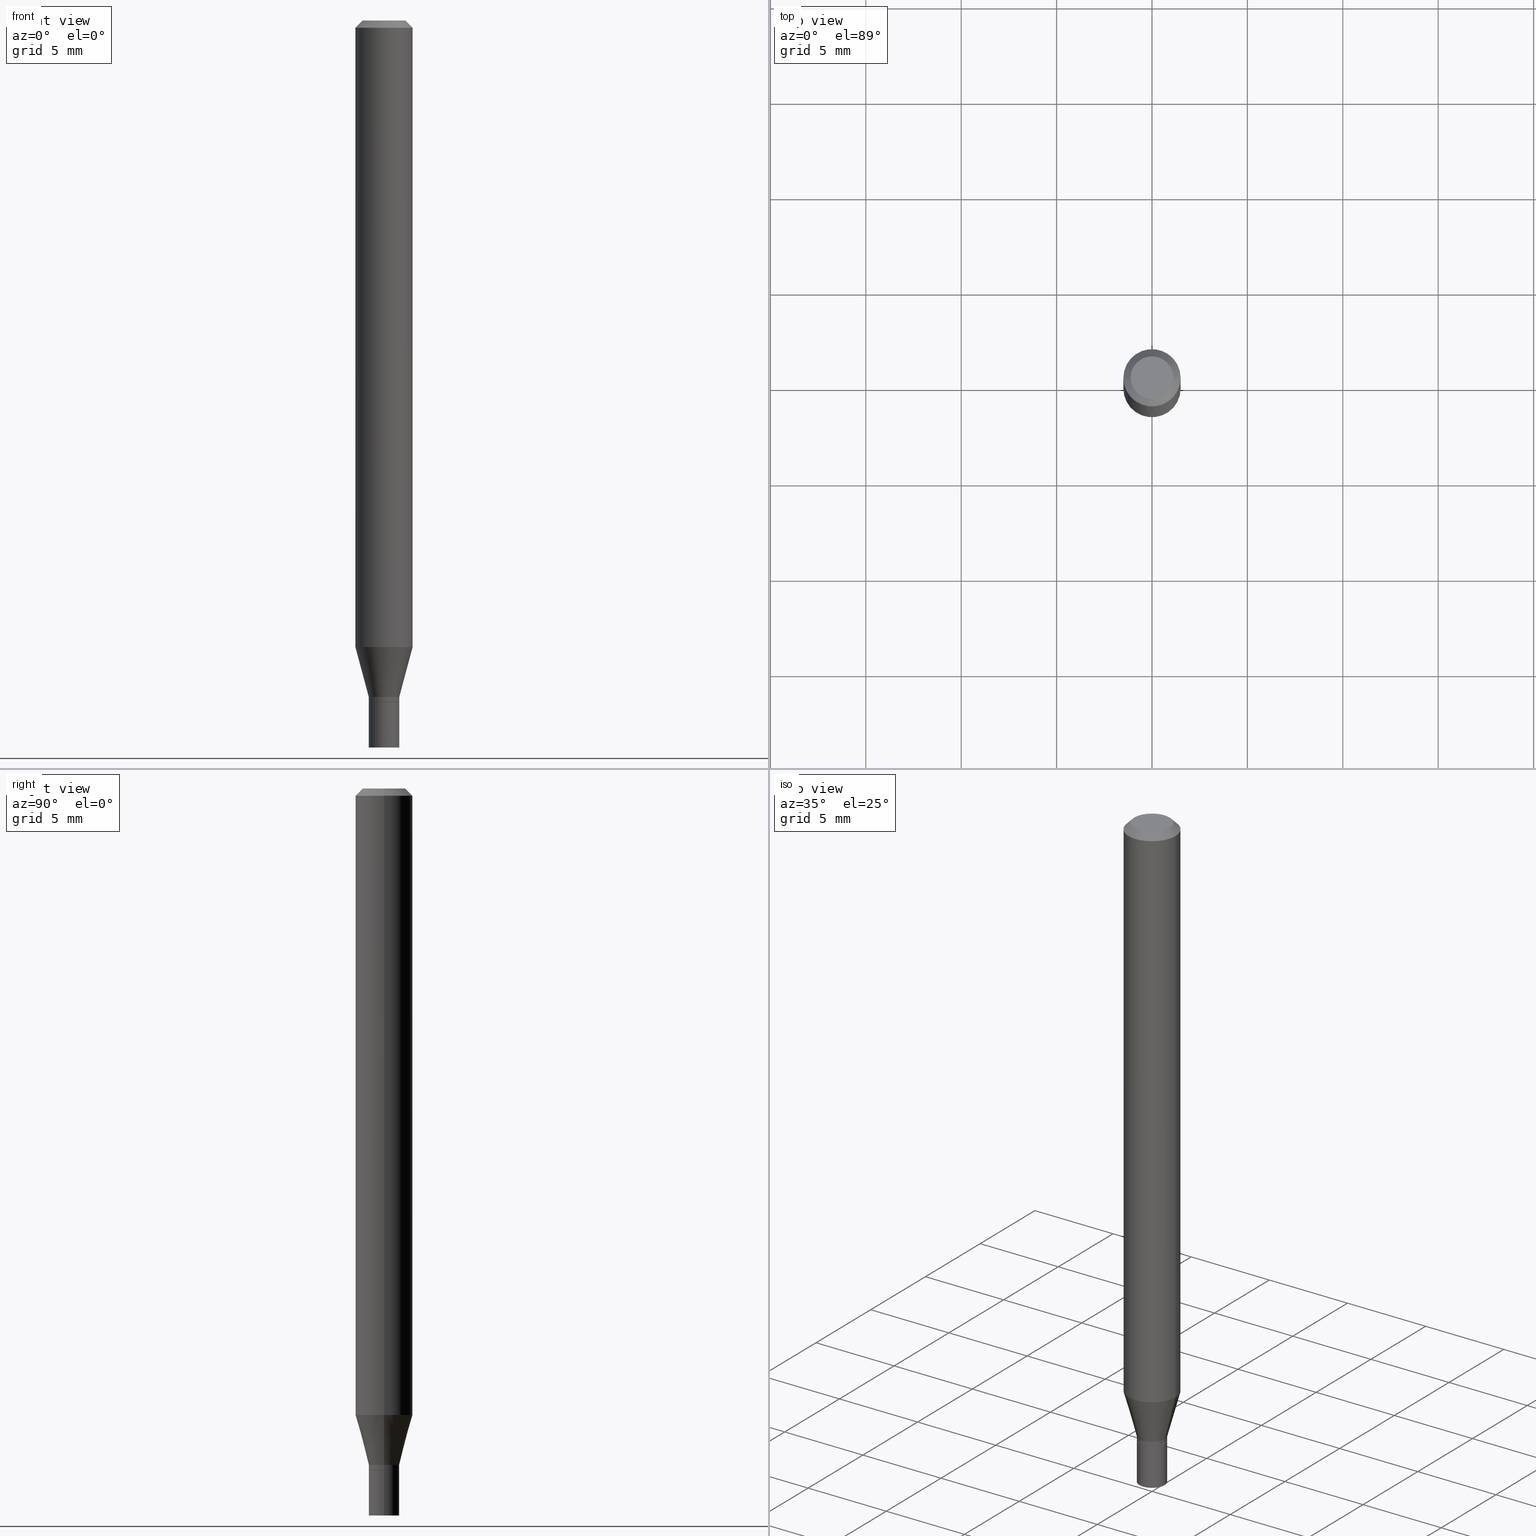
[diagram: canonical four-view strip — front | top / right | iso, engineering-drawing reading convention]
A machine part, canonical four-view strip (front | top / right | iso — engineering-drawing reading convention). The complete STEP part file that produces these views, byte-faithful:
ISO-10303-21;
HEADER;
FILE_DESCRIPTION (( 'STEP AP203' ),
    '1' );
FILE_NAME ('09294.STEP',
    '2024-03-14T18:23:59',
    ( '' ),
    ( '' ),
    'SwSTEP 2.0',
    'SolidWorks 2023',
    '' );
FILE_SCHEMA (( 'CONFIG_CONTROL_DESIGN' ));
ENDSEC;

DATA;
#1 = VERTEX_POINT ( 'NONE', #8 ) ;
#2 = AXIS2_PLACEMENT_3D ( 'NONE', #441, #227, #166 ) ;
#3 = CIRCLE ( 'NONE', #346, 0.03150000000000019451 ) ;
#4 = ORGANIZATION ( 'UNSPECIFIED', 'UNSPECIFIED', '' ) ;
#5 = APPROVAL_DATE_TIME ( #10, #408 ) ;
#6 = DIMENSIONAL_EXPONENTS ( 1.000000000000000000, 0.000000000000000000, 0.000000000000000000, 0.000000000000000000, 0.000000000000000000, 0.000000000000000000, 0.000000000000000000 ) ;
#7 = PRODUCT_DEFINITION_SHAPE ( 'NONE', 'NONE',  #260 ) ;
#8 = CARTESIAN_POINT ( 'NONE',  ( 0.03150000000000000022, -5.457185332611835515E-15, -1.500000000000000222 ) ) ;
#9 = CALENDAR_DATE ( 2024, 14, 3 ) ;
#10 = DATE_AND_TIME ( #110, #264 ) ;
#11 = CARTESIAN_POINT ( 'NONE',  ( 3.437106407093209137E-29, -4.907277021744040592E-15, -1.405499999999999750 ) ) ;
#12 = AXIS2_PLACEMENT_3D ( 'NONE', #41, #22, #94 ) ;
#13 = CARTESIAN_POINT ( 'NONE',  ( 0.000000000000000000, 0.000000000000000000, 0.000000000000000000 ) ) ;
#14 = CONICAL_SURFACE ( 'NONE', #91, 0.03099999999999999978, 0.7853981633980202659 ) ;
#15 = LINE ( 'NONE', #198, #425 ) ;
#16 = APPROVAL ( #256, 'UNSPECIFIED' ) ;
#17 = FACE_OUTER_BOUND ( 'NONE', #431, .T. ) ;
#18 = CARTESIAN_POINT ( 'NONE',  ( 0.03150000000000019451, -5.125494605421738793E-15, -1.405000000000000249 ) ) ;
#19 = CONICAL_SURFACE ( 'NONE', #409, 0.05904999999999999832, 0.7853981633974399523 ) ;
#20 = VECTOR ( 'NONE', #350, 39.37007874015748143 ) ;
#21 = CARTESIAN_POINT ( 'NONE',  ( 3.576687321579069994E-29, -5.368277968210015545E-15, -1.500000000000000222 ) ) ;
#22 = DIRECTION ( 'NONE',  ( -2.445468806185136597E-29, 3.491481338843145583E-15, 1.000000000000000000 ) ) ;
#23 = APPLICATION_PROTOCOL_DEFINITION ( 'international standard', 'config_control_design', 1994, #405 ) ;
#24 = EDGE_CURVE ( 'NONE', #29, #284, #80, .T. ) ;
#25 = EDGE_LOOP ( 'NONE', ( #213, #334, #224, #423 ) ) ;
#26 = CARTESIAN_POINT ( 'NONE',  ( 0.05904999999999999832, -4.647161662000212105E-16, -0.01499999999999999944 ) ) ;
#27 = CARTESIAN_POINT ( 'NONE',  ( 0.000000000000000000, 0.000000000000000000, 0.000000000000000000 ) ) ;
#28 = DIRECTION ( 'NONE',  ( 0.2588190451025214611, 1.565188264969620982E-15, 0.9659258262890679791 ) ) ;
#29 = VERTEX_POINT ( 'NONE', #100 ) ;
#30 = CARTESIAN_POINT ( 'NONE',  ( 3.161213507931992850E-29, -4.513375080936461598E-15, -1.292682000251476726 ) ) ;
#31 = CONICAL_SURFACE ( 'NONE', #302, 0.03099999999999999978, 0.7853981633980202659 ) ;
#32 =( NAMED_UNIT ( * ) SI_UNIT ( $, .STERADIAN. ) SOLID_ANGLE_UNIT ( ) );
#33 = VECTOR ( 'NONE', #64, 39.37007874015748854 ) ;
#34 = EDGE_LOOP ( 'NONE', ( #65, #160, #221, #176 ) ) ;
#35 = DIRECTION ( 'NONE',  ( -2.438088387897960049E-29, 3.491481338843145188E-15, 1.000000000000000000 ) ) ;
#36 = EDGE_CURVE ( 'NONE', #252, #363, #142, .T. ) ;
#37 = CARTESIAN_POINT ( 'NONE',  ( -0.03150000000000000022, 2.238209617644315601E-16, -1.549464553430295327E-30 ) ) ;
#38 = PRODUCT_RELATED_PRODUCT_CATEGORY ( 'detail', '', ( #79 ) ) ;
#39 = AXIS2_PLACEMENT_3D ( 'NONE', #30, #310, #55 ) ;
#40 = APPROVAL_PERSON_ORGANIZATION ( #330, #408, #165 ) ;
#41 = CARTESIAN_POINT ( 'NONE',  ( 3.437106407093209137E-29, -4.907277021744040592E-15, -1.405499999999999750 ) ) ;
#42 = ORIENTED_EDGE ( 'NONE', *, *, #263, .T. ) ;
#43 = CARTESIAN_POINT ( 'NONE',  ( 0.05904999999999999832, -4.925719027053834940E-15, -1.292682000251476726 ) ) ;
#44 = EDGE_LOOP ( 'NONE', ( #354, #157 ) ) ;
#45 = PERSON_AND_ORGANIZATION_ROLE ( 'creator' ) ;
#46 = CARTESIAN_POINT ( 'NONE',  ( -0.05904999999999999832, -1.863298165043215043E-15, -0.01499999999999999944 ) ) ;
#47 = ORIENTED_EDGE ( 'NONE', *, *, #263, .F. ) ;
#48 = CIRCLE ( 'NONE', #170, 0.03099999999999999978 ) ;
#49 = CALENDAR_DATE ( 2024, 14, 3 ) ;
#50 = EDGE_LOOP ( 'NONE', ( #131, #42, #390, #375 ) ) ;
#51 = APPROVAL_DATE_TIME ( #196, #16 ) ;
#52 = EDGE_CURVE ( 'NONE', #358, #418, #206, .T. ) ;
#53 = ADVANCED_FACE ( 'NONE', ( #106 ), #318, .F. ) ;
#54 = DIRECTION ( 'NONE',  ( -2.445468806185136597E-29, 3.491481338843145583E-15, 1.000000000000000000 ) ) ;
#55 = DIRECTION ( 'NONE',  ( 1.000000000000000000, -6.982962677686273021E-15, 0.000000000000000000 ) ) ;
#56 = VECTOR ( 'NONE', #411, 39.37007874015748143 ) ;
#57 = AXIS2_PLACEMENT_3D ( 'NONE', #414, #101, #382 ) ;
#58 = EDGE_CURVE ( 'NONE', #210, #290, #313, .T. ) ;
#59 = CARTESIAN_POINT ( 'NONE',  ( 0.03099999999999999978, -5.123748864752314923E-15, -1.405499999999999750 ) ) ;
#60 = EDGE_CURVE ( 'NONE', #144, #175, #70, .T. ) ;
#61 = DIRECTION ( 'NONE',  ( 0.7071067811865415775, -7.319954787623235535E-15, -0.7071067811865534569 ) ) ;
#62 = CC_DESIGN_PERSON_AND_ORGANIZATION_ASSIGNMENT ( #143, #374, ( #79 ) ) ;
#63 = PLANE ( 'NONE',  #443 ) ;
#64 = DIRECTION ( 'NONE',  ( 0.7071067811869518049, -2.468850131086492060E-15, 0.7071067811861430075 ) ) ;
#65 = ORIENTED_EDGE ( 'NONE', *, *, #398, .T. ) ;
#66 = AXIS2_PLACEMENT_3D ( 'NONE', #305, #268, #124 ) ;
#67 = VECTOR ( 'NONE', #61, 39.37007874015748143 ) ;
#68 = MECHANICAL_CONTEXT ( 'NONE', #266, 'mechanical' ) ;
#69 = ORIENTED_EDGE ( 'NONE', *, *, #77, .F. ) ;
#70 = LINE ( 'NONE', #282, #341 ) ;
#71 =( LENGTH_UNIT ( ) NAMED_UNIT ( * ) SI_UNIT ( $, .METRE. ) );
#72 = VERTEX_POINT ( 'NONE', #214 ) ;
#73 = DIRECTION ( 'NONE',  ( -1.000000000000000000, 6.982962677686265922E-15, -4.876176775795935793E-29 ) ) ;
#74 = ORIENTED_EDGE ( 'NONE', *, *, #445, .F. ) ;
#75 = ORIENTED_EDGE ( 'NONE', *, *, #138, .T. ) ;
#76 = DIRECTION ( 'NONE',  ( -2.445468806185136877E-29, 3.491481338843145188E-15, 1.000000000000000000 ) ) ;
#77 = EDGE_CURVE ( 'NONE', #316, #175, #3, .T. ) ;
#78 = CIRCLE ( 'NONE', #395, 0.05904999999999999832 ) ;
#79 = PRODUCT ( '09294', '09294', '', ( #68 ) ) ;
#80 = LINE ( 'NONE', #93, #90 ) ;
#81 = CALENDAR_DATE ( 2024, 14, 3 ) ;
#82 = APPROVAL_DATE_TIME ( #297, #228 ) ;
#83 = MANIFOLD_SOLID_BREP ( 'Body-Move/Copy2[1]', #116 ) ;
#84 = MANIFOLD_SOLID_BREP ( 'Body-Move/Copy2[2]', #103 ) ;
#85 = CIRCLE ( 'NONE', #2, 0.03150000000000000022 ) ;
#86 = APPROVAL_PERSON_ORGANIZATION ( #156, #16, #396 ) ;
#87 = APPROVAL_STATUS ( 'not_yet_approved' ) ;
#88 = EDGE_LOOP ( 'NONE', ( #453, #391, #69, #74 ) ) ;
#89 = EDGE_CURVE ( 'NONE', #175, #316, #462, .T. ) ;
#90 = VECTOR ( 'NONE', #371, 39.37007874015748143 ) ;
#91 = AXIS2_PLACEMENT_3D ( 'NONE', #401, #300, #386 ) ;
#92 = EDGE_CURVE ( 'NONE', #175, #72, #452, .T. ) ;
#93 = CARTESIAN_POINT ( 'NONE',  ( -0.05904999999999999832, 4.195754854663391478E-16, -2.904631170795521892E-30 ) ) ;
#94 = DIRECTION ( 'NONE',  ( 1.000000000000000000, -6.982962677686270655E-15, 0.000000000000000000 ) ) ;
#95 = AXIS2_PLACEMENT_3D ( 'NONE', #126, #335, #141 ) ;
#96 = AXIS2_PLACEMENT_3D ( 'NONE', #349, #412, #306 ) ;
#97 = CARTESIAN_POINT ( 'NONE',  ( 0.03149999999999965328, -5.092325532702724703E-15, -1.395500000000000185 ) ) ;
#98 = EDGE_LOOP ( 'NONE', ( #436, #327 ) ) ;
#99 = DIRECTION ( 'NONE',  ( 1.000000000000000000, -6.982962677686266711E-15, 4.876176775795935793E-29 ) ) ;
#100 = CARTESIAN_POINT ( 'NONE',  ( -0.05904999999999999832, -4.093799595470121316E-15, -1.292682000251476726 ) ) ;
#101 = DIRECTION ( 'NONE',  ( 0.000000000000000000, 0.000000000000000000, 1.000000000000000000 ) ) ;
#102 = ORIENTED_EDGE ( 'NONE', *, *, #460, .T. ) ;
#103 = CLOSED_SHELL ( 'NONE', ( #217, #345, #342, #164, #388, #111, #233, #420, #128, #298, #271, #127 ) ) ;
#104 = CARTESIAN_POINT ( 'NONE',  ( -0.04404999999999999888, 3.337856159934039069E-16, 2.531384086379446237E-16 ) ) ;
#105 = DIRECTION ( 'NONE',  ( -0.7071067811869518049, 7.493145998871813553E-15, 0.7071067811861430075 ) ) ;
#106 = FACE_OUTER_BOUND ( 'NONE', #98, .T. ) ;
#107 = DIRECTION ( 'NONE',  ( -2.445468806185136597E-29, 3.491481338843145583E-15, 1.000000000000000000 ) ) ;
#108 = AXIS2_PLACEMENT_3D ( 'NONE', #230, #54, #344 ) ;
#109 = ORIENTED_EDGE ( 'NONE', *, *, #194, .T. ) ;
#110 = CALENDAR_DATE ( 2024, 14, 3 ) ;
#111 = ADVANCED_FACE ( 'NONE', ( #180 ), #197, .T. ) ;
#112 = ORIENTED_EDGE ( 'NONE', *, *, #255, .T. ) ;
#113 = CARTESIAN_POINT ( 'NONE',  ( 3.435883672690117457E-29, -4.905531281074619877E-15, -1.405000000000000249 ) ) ;
#114 = ORIENTED_EDGE ( 'NONE', *, *, #255, .F. ) ;
#115 = CC_DESIGN_PERSON_AND_ORGANIZATION_ASSIGNMENT ( #158, #400, ( #435 ) ) ;
#116 = CLOSED_SHELL ( 'NONE', ( #145, #167, #211, #53 ) ) ;
#117 = CIRCLE ( 'NONE', #96, 0.05904999999999999832 ) ;
#118 = CYLINDRICAL_SURFACE ( 'NONE', #231, 0.05904999999999999832 ) ;
#119 = ORIENTED_EDGE ( 'NONE', *, *, #380, .F. ) ;
#120 = EDGE_CURVE ( 'NONE', #72, #368, #258, .T. ) ;
#121 = DIRECTION ( 'NONE',  ( 1.000000000000000000, -6.982962677686255667E-15, 0.000000000000000000 ) ) ;
#122 = AXIS2_PLACEMENT_3D ( 'NONE', #212, #172, #272 ) ;
#123 = CC_DESIGN_APPROVAL ( #408, ( #435 ) ) ;
#124 = DIRECTION ( 'NONE',  ( 1.000000000000000000, -6.982962677686255667E-15, 0.000000000000000000 ) ) ;
#125 = EDGE_CURVE ( 'NONE', #284, #290, #190, .T. ) ;
#126 = CARTESIAN_POINT ( 'NONE',  ( 3.437106407093210258E-29, -4.907277021744041380E-15, -1.405499999999999972 ) ) ;
#127 = ADVANCED_FACE ( 'NONE', ( #239 ), #319, .T. ) ;
#128 = ADVANCED_FACE ( 'NONE', ( #236 ), #63, .F. ) ;
#129 = FACE_OUTER_BOUND ( 'NONE', #337, .T. ) ;
#130 = LINE ( 'NONE', #376, #419 ) ;
#131 = ORIENTED_EDGE ( 'NONE', *, *, #60, .F. ) ;
#132 = AXIS2_PLACEMENT_3D ( 'NONE', #27, #134, #99 ) ;
#133 = DIRECTION ( 'NONE',  ( 1.000000000000000000, -6.982962677686265922E-15, 4.888540261209747396E-29 ) ) ;
#134 = DIRECTION ( 'NONE',  ( -2.445468806185136597E-29, 3.491481338843145583E-15, 1.000000000000000000 ) ) ;
#135 = DIRECTION ( 'NONE',  ( -2.445468806185136877E-29, 3.491481338843145188E-15, 1.000000000000000000 ) ) ;
#136 = ORIENTED_EDGE ( 'NONE', *, *, #24, .T. ) ;
#137 = CARTESIAN_POINT ( 'NONE',  ( 3.437106407093210258E-29, -4.907277021744041380E-15, -1.405499999999999972 ) ) ;
#138 = EDGE_CURVE ( 'NONE', #1, #451, #85, .T. ) ;
#139 = LINE ( 'NONE', #59, #33 ) ;
#140 = ORIENTED_EDGE ( 'NONE', *, *, #460, .F. ) ;
#141 = DIRECTION ( 'NONE',  ( 1.000000000000000000, -6.982962677686255667E-15, 0.000000000000000000 ) ) ;
#142 = CIRCLE ( 'NONE', #108, 0.04404999999999999888 ) ;
#143 = PERSON_AND_ORGANIZATION ( #407, #4 ) ;
#144 = VERTEX_POINT ( 'NONE', #399 ) ;
#145 = ADVANCED_FACE ( 'NONE', ( #17 ), #296, .T. ) ;
#146 = DIRECTION ( 'NONE',  ( 1.000000000000000000, -6.982962677686271444E-15, 0.000000000000000000 ) ) ;
#147 = DESIGN_CONTEXT ( 'detailed design', #405, 'design' ) ;
#148 = ORIENTED_EDGE ( 'NONE', *, *, #314, .T. ) ;
#149 = EDGE_CURVE ( 'NONE', #418, #358, #449, .T. ) ;
#150 = CARTESIAN_POINT ( 'NONE',  ( 3.161213507931992850E-29, -4.513375080936461598E-15, -1.292682000251476726 ) ) ;
#151 = ORIENTED_EDGE ( 'NONE', *, *, #432, .F. ) ;
#152 = CYLINDRICAL_SURFACE ( 'NONE', #162, 0.03150000000000000022 ) ;
#153 = AXIS2_PLACEMENT_3D ( 'NONE', #404, #338, #133 ) ;
#154 = LOCAL_TIME ( 14, 23, 59.00000000000000000, #261 ) ;
#155 = APPROVAL_ROLE ( '' ) ;
#156 = PERSON_AND_ORGANIZATION ( #407, #4 ) ;
#157 = ORIENTED_EDGE ( 'NONE', *, *, #304, .F. ) ;
#158 = PERSON_AND_ORGANIZATION ( #407, #4 ) ;
#159 = DIRECTION ( 'NONE',  ( -0.2588190451025214611, 5.211531920934550253E-15, 0.9659258262890679791 ) ) ;
#160 = ORIENTED_EDGE ( 'NONE', *, *, #265, .T. ) ;
#161 = DIRECTION ( 'NONE',  ( -2.445468806185136597E-29, 3.491481338843145583E-15, 1.000000000000000000 ) ) ;
#162 = AXIS2_PLACEMENT_3D ( 'NONE', #226, #424, #381 ) ;
#163 = LOCAL_TIME ( 14, 23, 59.00000000000000000, #191 ) ;
#164 = ADVANCED_FACE ( 'NONE', ( #225 ), #369, .T. ) ;
#165 = APPROVAL_ROLE ( '' ) ;
#166 = DIRECTION ( 'NONE',  ( 1.000000000000000000, -6.982962677686255667E-15, 0.000000000000000000 ) ) ;
#167 = ADVANCED_FACE ( 'NONE', ( #459 ), #359, .F. ) ;
#168 = COORDINATED_UNIVERSAL_TIME_OFFSET ( 5, 0, .BEHIND. ) ;
#169 = CARTESIAN_POINT ( 'NONE',  ( 0.000000000000000000, 0.000000000000000000, 0.000000000000000000 ) ) ;
#170 = AXIS2_PLACEMENT_3D ( 'NONE', #336, #339, #340 ) ;
#171 = CARTESIAN_POINT ( 'NONE',  ( 3.412651719031358713E-29, -4.872362208355609731E-15, -1.395500000000000185 ) ) ;
#172 = DIRECTION ( 'NONE',  ( -2.445468806185136597E-29, 3.491481338843145583E-15, 1.000000000000000000 ) ) ;
#173 = EDGE_LOOP ( 'NONE', ( #148, #307 ) ) ;
#174 = CARTESIAN_POINT ( 'NONE',  ( -0.03150000000000000022, -4.848428553239948021E-15, -1.405499999999999972 ) ) ;
#175 = VERTEX_POINT ( 'NONE', #186 ) ;
#176 = ORIENTED_EDGE ( 'NONE', *, *, #378, .F. ) ;
#177 = DIRECTION ( 'NONE',  ( -2.445468806185136597E-29, 3.491481338843145583E-15, 1.000000000000000000 ) ) ;
#178 = DIRECTION ( 'NONE',  ( -2.445468806185136597E-29, 3.491481338843145583E-15, 1.000000000000000000 ) ) ;
#179 = ORIENTED_EDGE ( 'NONE', *, *, #187, .F. ) ;
#180 = FACE_OUTER_BOUND ( 'NONE', #278, .T. ) ;
#181 = CARTESIAN_POINT ( 'NONE',  ( 0.03150000000000000022, -5.127240346091158719E-15, -1.405499999999999972 ) ) ;
#182 = CARTESIAN_POINT ( 'NONE',  ( 3.668203209277705088E-31, -5.237222008264718399E-17, -0.01499999999999999944 ) ) ;
#183 = DIRECTION ( 'NONE',  ( 1.000000000000000000, -6.982962677686273810E-15, 0.000000000000000000 ) ) ;
#184 = CIRCLE ( 'NONE', #66, 0.03150000000000000022 ) ;
#185 = CC_DESIGN_PERSON_AND_ORGANIZATION_ASSIGNMENT ( #220, #430, ( #232 ) ) ;
#186 = CARTESIAN_POINT ( 'NONE',  ( -0.03150000000000019451, -4.681710319310186936E-15, -1.405000000000000249 ) ) ;
#187 = EDGE_CURVE ( 'NONE', #29, #210, #78, .T. ) ;
#188 = DATE_TIME_ROLE ( 'creation_date' ) ;
#189 = ORIENTED_EDGE ( 'NONE', *, *, #89, .T. ) ;
#190 = CIRCLE ( 'NONE', #433, 0.05904999999999999832 ) ;
#191 = COORDINATED_UNIVERSAL_TIME_OFFSET ( 5, 0, .BEHIND. ) ;
#192 = CARTESIAN_POINT ( 'NONE',  ( -0.05904999999999999832, 3.599717260347268549E-16, -0.01499999999999999944 ) ) ;
#193 = CALENDAR_DATE ( 2024, 14, 3 ) ;
#194 = EDGE_CURVE ( 'NONE', #316, #368, #466, .T. ) ;
#195 = DIRECTION ( 'NONE',  ( -0.7071067811865415775, 2.468850131082194741E-15, -0.7071067811865534569 ) ) ;
#196 = DATE_AND_TIME ( #49, #154 ) ;
#197 = CONICAL_SURFACE ( 'NONE', #281, 0.03149999999999965328, 0.2617993877991501850 ) ;
#198 = CARTESIAN_POINT ( 'NONE',  ( -0.03149999999999965328, -4.648541246591180735E-15, -1.395500000000000185 ) ) ;
#199 = CC_DESIGN_PERSON_AND_ORGANIZATION_ASSIGNMENT ( #251, #439, ( #232 ) ) ;
#200 =( CONVERSION_BASED_UNIT ( 'INCH', #240 ) LENGTH_UNIT ( ) NAMED_UNIT ( #6 ) );
#201 = DIRECTION ( 'NONE',  ( 1.000000000000000000, -6.982962677686271444E-15, 0.000000000000000000 ) ) ;
#202 = CARTESIAN_POINT ( 'NONE',  ( 3.412651719031358713E-29, -4.872362208355609731E-15, -1.395500000000000185 ) ) ;
#203 = CARTESIAN_POINT ( 'NONE',  ( 3.075995059520799729E-16, 0.04404999999999999888, -2.723054865706713532E-17 ) ) ;
#204 = LINE ( 'NONE', #37, #20 ) ;
#205 = AXIS2_PLACEMENT_3D ( 'NONE', #416, #421, #183 ) ;
#206 = CIRCLE ( 'NONE', #95, 0.03150000000000000022 ) ;
#207 = AXIS2_PLACEMENT_3D ( 'NONE', #171, #450, #283 ) ;
#208 = CARTESIAN_POINT ( 'NONE',  ( 0.05904999999999999832, -4.574846268510561447E-16, -0.01499999999999999944 ) ) ;
#209 = PLANE ( 'NONE',  #372 ) ;
#210 = VERTEX_POINT ( 'NONE', #43 ) ;
#211 = ADVANCED_FACE ( 'NONE', ( #361 ), #152, .T. ) ;
#212 = CARTESIAN_POINT ( 'NONE',  ( 0.000000000000000000, 0.000000000000000000, 0.000000000000000000 ) ) ;
#213 = ORIENTED_EDGE ( 'NONE', *, *, #77, .T. ) ;
#214 = CARTESIAN_POINT ( 'NONE',  ( -0.03149999999999965328, -4.371170421030651026E-15, -1.395500000000000185 ) ) ;
#215 = CARTESIAN_POINT ( 'NONE',  ( 0.04404999999999999888, -3.798447818264456135E-16, 2.531384086379492583E-16 ) ) ;
#216 = EDGE_LOOP ( 'NONE', ( #219, #189, #109, #360 ) ) ;
#217 = ADVANCED_FACE ( 'NONE', ( #455 ), #234, .T. ) ;
#218 = COORDINATED_UNIVERSAL_TIME_OFFSET ( 5, 0, .BEHIND. ) ;
#219 = ORIENTED_EDGE ( 'NONE', *, *, #92, .F. ) ;
#220 = PERSON_AND_ORGANIZATION ( #407, #4 ) ;
#221 = ORIENTED_EDGE ( 'NONE', *, *, #326, .F. ) ;
#222 = CIRCLE ( 'NONE', #153, 0.04404999999999999888 ) ;
#223 = CARTESIAN_POINT ( 'NONE',  ( 0.05904999999999999832, -4.123439461173740327E-16, 2.879382386107500220E-30 ) ) ;
#224 = ORIENTED_EDGE ( 'NONE', *, *, #398, .F. ) ;
#225 = FACE_OUTER_BOUND ( 'NONE', #415, .T. ) ;
#226 = CARTESIAN_POINT ( 'NONE',  ( 0.000000000000000000, 0.000000000000000000, 0.000000000000000000 ) ) ;
#227 = DIRECTION ( 'NONE',  ( -2.445468806185136597E-29, 3.491481338843145583E-15, 1.000000000000000000 ) ) ;
#228 = APPROVAL ( #367, 'UNSPECIFIED' ) ;
#229 = VECTOR ( 'NONE', #195, 39.37007874015748143 ) ;
#230 = CARTESIAN_POINT ( 'NONE',  ( -6.190420819714451422E-45, 8.838280299038419248E-31, 2.531384086379468424E-16 ) ) ;
#231 = AXIS2_PLACEMENT_3D ( 'NONE', #13, #107, #244 ) ;
#232 = PRODUCT_DEFINITION_FORMATION_WITH_SPECIFIED_SOURCE ( 'ANY', '', #79, .NOT_KNOWN. ) ;
#233 = ADVANCED_FACE ( 'NONE', ( #129 ), #118, .T. ) ;
#234 = CYLINDRICAL_SURFACE ( 'NONE', #370, 0.03149999999999992389 ) ;
#235 = DIRECTION ( 'NONE',  ( 2.445468806185136597E-29, -3.491481338843145583E-15, -1.000000000000000000 ) ) ;
#236 = FACE_OUTER_BOUND ( 'NONE', #173, .T. ) ;
#237 = FACE_OUTER_BOUND ( 'NONE', #34, .T. ) ;
#238 = CARTESIAN_POINT ( 'NONE',  ( 0.03099999999999999978, -5.123748864752314923E-15, -1.405499999999999750 ) ) ;
#239 = FACE_OUTER_BOUND ( 'NONE', #216, .T. ) ;
#240 = LENGTH_MEASURE_WITH_UNIT ( LENGTH_MEASURE( 0.02539999999999999897 ), #71 );
#241 = ORIENTED_EDGE ( 'NONE', *, *, #432, .T. ) ;
#242 = AXIS2_PLACEMENT_3D ( 'NONE', #348, #235, #456 ) ;
#243 = DIRECTION ( 'NONE',  ( -2.445468806185136597E-29, 3.491481338843145583E-15, 1.000000000000000000 ) ) ;
#244 = DIRECTION ( 'NONE',  ( 1.000000000000000000, -6.982962677686266711E-15, 4.876176775795936353E-29 ) ) ;
#245 = EDGE_LOOP ( 'NONE', ( #312, #47 ) ) ;
#246 = AXIS2_PLACEMENT_3D ( 'NONE', #21, #387, #389 ) ;
#247 = ORIENTED_EDGE ( 'NONE', *, *, #326, .T. ) ;
#248 = CC_DESIGN_SECURITY_CLASSIFICATION ( #435, ( #232 ) ) ;
#249 = DIRECTION ( 'NONE',  ( 1.000000000000000000, -6.982962677686273021E-15, 0.000000000000000000 ) ) ;
#250 = ORIENTED_EDGE ( 'NONE', *, *, #52, .F. ) ;
#251 = PERSON_AND_ORGANIZATION ( #407, #4 ) ;
#252 = VERTEX_POINT ( 'NONE', #215 ) ;
#253 = FACE_OUTER_BOUND ( 'NONE', #50, .T. ) ;
#254 = CARTESIAN_POINT ( 'NONE',  ( 2.199633243471517523E-16, 0.03149999999999509442, -1.405499999999999972 ) ) ;
#255 = EDGE_CURVE ( 'NONE', #363, #284, #320, .T. ) ;
#256 = APPROVAL_STATUS ( 'not_yet_approved' ) ;
#257 = EDGE_LOOP ( 'NONE', ( #259, #288, #397, #114 ) ) ;
#258 = CIRCLE ( 'NONE', #287, 0.03149999999999965328 ) ;
#259 = ORIENTED_EDGE ( 'NONE', *, *, #36, .F. ) ;
#260 = PRODUCT_DEFINITION ( 'UNKNOWN', '', #232, #147 ) ;
#261 = COORDINATED_UNIVERSAL_TIME_OFFSET ( 5, 0, .BEHIND. ) ;
#262 = AXIS2_PLACEMENT_3D ( 'NONE', #444, #267, #121 ) ;
#263 = EDGE_CURVE ( 'NONE', #144, #295, #48, .T. ) ;
#264 = LOCAL_TIME ( 14, 23, 59.00000000000000000, #218 ) ;
#265 = EDGE_CURVE ( 'NONE', #72, #29, #15, .T. ) ;
#266 = APPLICATION_CONTEXT ( 'configuration controlled 3d designs of mechanical parts and assemblies' ) ;
#267 = DIRECTION ( 'NONE',  ( -2.445468806185136597E-29, 3.491481338843145583E-15, 1.000000000000000000 ) ) ;
#268 = DIRECTION ( 'NONE',  ( -2.445468806185136597E-29, 3.491481338843145583E-15, 1.000000000000000000 ) ) ;
#269 = DIRECTION ( 'NONE',  ( -1.000000000000000000, 6.982962677686265922E-15, -4.876176775795935793E-29 ) ) ;
#270 = LINE ( 'NONE', #448, #364 ) ;
#271 = ADVANCED_FACE ( 'NONE', ( #253 ), #31, .T. ) ;
#272 = DIRECTION ( 'NONE',  ( 1.000000000000000000, -6.982962677686266711E-15, 4.876176775795936353E-29 ) ) ;
#273 = ORIENTED_EDGE ( 'NONE', *, *, #120, .T. ) ;
#274 = AXIS2_PLACEMENT_3D ( 'NONE', #169, #438, #301 ) ;
#275 = CC_DESIGN_APPROVAL ( #16, ( #260 ) ) ;
#276 = ORIENTED_EDGE ( 'NONE', *, *, #58, .T. ) ;
#277 = ORIENTED_EDGE ( 'NONE', *, *, #58, .F. ) ;
#278 = EDGE_LOOP ( 'NONE', ( #392, #273, #322, #179 ) ) ;
#279 = DIRECTION ( 'NONE',  ( -2.445468806185136877E-29, 3.491481338843145188E-15, 1.000000000000000000 ) ) ;
#280 = CARTESIAN_POINT ( 'NONE',  ( 0.000000000000000000, 0.000000000000000000, 0.000000000000000000 ) ) ;
#281 = AXIS2_PLACEMENT_3D ( 'NONE', #324, #465, #146 ) ;
#282 = CARTESIAN_POINT ( 'NONE',  ( -0.03099999999999999978, -4.687008773658409338E-15, -1.405499999999999750 ) ) ;
#283 = DIRECTION ( 'NONE',  ( 1.000000000000000000, -6.982962677686271444E-15, 0.000000000000000000 ) ) ;
#284 = VERTEX_POINT ( 'NONE', #46 ) ;
#285 = EDGE_LOOP ( 'NONE', ( #119, #332, #112, #379 ) ) ;
#286 = DIRECTION ( 'NONE',  ( -2.445468806185136597E-29, 3.491481338843145583E-15, 1.000000000000000000 ) ) ;
#287 = AXIS2_PLACEMENT_3D ( 'NONE', #413, #177, #201 ) ;
#288 = ORIENTED_EDGE ( 'NONE', *, *, #380, .T. ) ;
#289 = SHAPE_DEFINITION_REPRESENTATION ( #7, #321 ) ;
#290 = VERTEX_POINT ( 'NONE', #26 ) ;
#291 = DATE_AND_TIME ( #9, #352 ) ;
#292 = ORIENTED_EDGE ( 'NONE', *, *, #427, .F. ) ;
#293 = DIRECTION ( 'NONE',  ( 2.438088387897960049E-29, -3.491481338843145188E-15, -1.000000000000000000 ) ) ;
#294 = PERSON_AND_ORGANIZATION ( #407, #4 ) ;
#295 = VERTEX_POINT ( 'NONE', #238 ) ;
#296 = CYLINDRICAL_SURFACE ( 'NONE', #274, 0.03150000000000000022 ) ;
#297 = DATE_AND_TIME ( #81, #303 ) ;
#298 = ADVANCED_FACE ( 'NONE', ( #406 ), #209, .F. ) ;
#299 = FACE_OUTER_BOUND ( 'NONE', #88, .T. ) ;
#300 = DIRECTION ( 'NONE',  ( -2.445468806185136597E-29, 3.491481338843145583E-15, 1.000000000000000000 ) ) ;
#301 = DIRECTION ( 'NONE',  ( 1.000000000000000000, -6.982962677686265922E-15, 4.876176775795936353E-29 ) ) ;
#302 = AXIS2_PLACEMENT_3D ( 'NONE', #11, #161, #328 ) ;
#303 = LOCAL_TIME ( 14, 23, 59.00000000000000000, #168 ) ;
#304 = EDGE_CURVE ( 'NONE', #451, #1, #184, .T. ) ;
#305 = CARTESIAN_POINT ( 'NONE',  ( 3.668203209277704895E-29, -5.237222008264718177E-15, -1.500000000000000222 ) ) ;
#306 = DIRECTION ( 'NONE',  ( 1.000000000000000000, -6.982962677686266711E-15, 0.000000000000000000 ) ) ;
#307 = ORIENTED_EDGE ( 'NONE', *, *, #36, .T. ) ;
#308 = VECTOR ( 'NONE', #279, 39.37007874015748143 ) ;
#309 = CC_DESIGN_APPROVAL ( #228, ( #232 ) ) ;
#310 = DIRECTION ( 'NONE',  ( -2.445468806185136597E-29, 3.491481338843145583E-15, 1.000000000000000000 ) ) ;
#311 = CARTESIAN_POINT ( 'NONE',  ( -0.03150000000000000022, -4.848428553239948021E-15, -1.500000000000000222 ) ) ;
#312 = ORIENTED_EDGE ( 'NONE', *, *, #317, .F. ) ;
#313 = LINE ( 'NONE', #223, #308 ) ;
#314 = EDGE_CURVE ( 'NONE', #363, #252, #222, .T. ) ;
#315 =( NAMED_UNIT ( * ) PLANE_ANGLE_UNIT ( ) SI_UNIT ( $, .RADIAN. ) );
#316 = VERTEX_POINT ( 'NONE', #18 ) ;
#317 = EDGE_CURVE ( 'NONE', #295, #144, #329, .T. ) ;
#318 = PLANE ( 'NONE',  #402 ) ;
#319 = CYLINDRICAL_SURFACE ( 'NONE', #132, 0.03149999999999992389 ) ;
#320 = LINE ( 'NONE', #192, #229 ) ;
#321 = ADVANCED_BREP_SHAPE_REPRESENTATION ( '09294', ( #83, #84, #57 ), #347 ) ;
#322 = ORIENTED_EDGE ( 'NONE', *, *, #378, .T. ) ;
#323 = APPROVAL_PERSON_ORGANIZATION ( #294, #228, #155 ) ;
#324 = CARTESIAN_POINT ( 'NONE',  ( 3.412651719031358713E-29, -4.872362208355609731E-15, -1.395500000000000185 ) ) ;
#325 = UNCERTAINTY_MEASURE_WITH_UNIT (LENGTH_MEASURE( 1.000000000000000082E-05 ), #200, 'distance_accuracy_value', 'NONE');
#326 = EDGE_CURVE ( 'NONE', #210, #29, #383, .T. ) ;
#327 = ORIENTED_EDGE ( 'NONE', *, *, #52, .T. ) ;
#328 = DIRECTION ( 'NONE',  ( 1.000000000000000000, -6.982962677686270655E-15, 0.000000000000000000 ) ) ;
#329 = CIRCLE ( 'NONE', #12, 0.03099999999999999978 ) ;
#330 = PERSON_AND_ORGANIZATION ( #407, #4 ) ;
#331 = AXIS2_PLACEMENT_3D ( 'NONE', #202, #178, #410 ) ;
#332 = ORIENTED_EDGE ( 'NONE', *, *, #314, .F. ) ;
#333 = DATE_TIME_ROLE ( 'classification_date' ) ;
#334 = ORIENTED_EDGE ( 'NONE', *, *, #92, .T. ) ;
#335 = DIRECTION ( 'NONE',  ( -2.445468806185136597E-29, 3.491481338843145583E-15, 1.000000000000000000 ) ) ;
#336 = CARTESIAN_POINT ( 'NONE',  ( 3.437106407093209137E-29, -4.907277021744040592E-15, -1.405499999999999750 ) ) ;
#337 = EDGE_LOOP ( 'NONE', ( #429, #442, #276, #384 ) ) ;
#338 = DIRECTION ( 'NONE',  ( -2.445468806185136597E-29, 3.491481338843145583E-15, 1.000000000000000000 ) ) ;
#339 = DIRECTION ( 'NONE',  ( -2.445468806185136597E-29, 3.491481338843145583E-15, 1.000000000000000000 ) ) ;
#340 = DIRECTION ( 'NONE',  ( 1.000000000000000000, -6.982962677686270655E-15, 0.000000000000000000 ) ) ;
#341 = VECTOR ( 'NONE', #105, 39.37007874015748854 ) ;
#342 = ADVANCED_FACE ( 'NONE', ( #440 ), #19, .T. ) ;
#343 = DIRECTION ( 'NONE',  ( -1.000000000000000000, 6.982962677686266711E-15, 0.000000000000000000 ) ) ;
#344 = DIRECTION ( 'NONE',  ( 1.000000000000000000, -6.982962677686265922E-15, 4.888540261209747396E-29 ) ) ;
#345 = ADVANCED_FACE ( 'NONE', ( #299 ), #14, .T. ) ;
#346 = AXIS2_PLACEMENT_3D ( 'NONE', #113, #356, #394 ) ;
#347 =( GEOMETRIC_REPRESENTATION_CONTEXT ( 3 ) GLOBAL_UNCERTAINTY_ASSIGNED_CONTEXT ( ( #325 ) ) GLOBAL_UNIT_ASSIGNED_CONTEXT ( ( #200, #315, #32 ) ) REPRESENTATION_CONTEXT ( 'NONE', 'WORKASPACE' ) );
#348 = CARTESIAN_POINT ( 'NONE',  ( 3.668203209277705088E-31, -5.237222008264718399E-17, -0.01499999999999999944 ) ) ;
#349 = CARTESIAN_POINT ( 'NONE',  ( 3.668203209277705088E-31, -5.237222008264718399E-17, -0.01499999999999999944 ) ) ;
#350 = DIRECTION ( 'NONE',  ( -2.445468806185136877E-29, 3.491481338843145188E-15, 1.000000000000000000 ) ) ;
#351 = EDGE_LOOP ( 'NONE', ( #140, #365, #241, #250 ) ) ;
#352 = LOCAL_TIME ( 14, 23, 59.00000000000000000, #362 ) ;
#353 = CARTESIAN_POINT ( 'NONE',  ( -0.03149999999999992389, 2.238209617644310178E-16, -1.549464553430291473E-30 ) ) ;
#354 = ORIENTED_EDGE ( 'NONE', *, *, #138, .F. ) ;
#355 = LINE ( 'NONE', #208, #67 ) ;
#356 = DIRECTION ( 'NONE',  ( -2.445468806185136597E-29, 3.491481338843145583E-15, 1.000000000000000000 ) ) ;
#357 = CONICAL_SURFACE ( 'NONE', #242, 0.05904999999999999832, 0.7853981633974399523 ) ;
#358 = VERTEX_POINT ( 'NONE', #174 ) ;
#359 = PLANE ( 'NONE',  #246 ) ;
#360 = ORIENTED_EDGE ( 'NONE', *, *, #120, .F. ) ;
#361 = FACE_OUTER_BOUND ( 'NONE', #351, .T. ) ;
#362 = COORDINATED_UNIVERSAL_TIME_OFFSET ( 5, 0, .BEHIND. ) ;
#363 = VERTEX_POINT ( 'NONE', #104 ) ;
#364 = VECTOR ( 'NONE', #28, 39.37007874015748143 ) ;
#365 = ORIENTED_EDGE ( 'NONE', *, *, #304, .T. ) ;
#366 = CC_DESIGN_PERSON_AND_ORGANIZATION_ASSIGNMENT ( #437, #45, ( #260 ) ) ;
#367 = APPROVAL_STATUS ( 'not_yet_approved' ) ;
#368 = VERTEX_POINT ( 'NONE', #97 ) ;
#369 = CYLINDRICAL_SURFACE ( 'NONE', #122, 0.05904999999999999832 ) ;
#370 = AXIS2_PLACEMENT_3D ( 'NONE', #280, #373, #447 ) ;
#371 = DIRECTION ( 'NONE',  ( -2.445468806185136877E-29, 3.491481338843145188E-15, 1.000000000000000000 ) ) ;
#372 = AXIS2_PLACEMENT_3D ( 'NONE', #137, #35, #457 ) ;
#373 = DIRECTION ( 'NONE',  ( -2.445468806185136597E-29, 3.491481338843145583E-15, 1.000000000000000000 ) ) ;
#374 = PERSON_AND_ORGANIZATION_ROLE ( 'design_owner' ) ;
#375 = ORIENTED_EDGE ( 'NONE', *, *, #89, .F. ) ;
#376 = CARTESIAN_POINT ( 'NONE',  ( 0.03150000000000000022, -2.199633243471173876E-16, 1.535995684375719887E-30 ) ) ;
#377 = FACE_OUTER_BOUND ( 'NONE', #285, .T. ) ;
#378 = EDGE_CURVE ( 'NONE', #368, #210, #270, .T. ) ;
#379 = ORIENTED_EDGE ( 'NONE', *, *, #125, .T. ) ;
#380 = EDGE_CURVE ( 'NONE', #252, #290, #355, .T. ) ;
#381 = DIRECTION ( 'NONE',  ( 1.000000000000000000, -6.982962677686265922E-15, 4.876176775795936353E-29 ) ) ;
#382 = DIRECTION ( 'NONE',  ( 1.000000000000000000, 0.000000000000000000, 0.000000000000000000 ) ) ;
#383 = CIRCLE ( 'NONE', #39, 0.05904999999999999832 ) ;
#384 = ORIENTED_EDGE ( 'NONE', *, *, #125, .F. ) ;
#385 = DIRECTION ( 'NONE',  ( 1.000000000000000000, -6.982962677686266711E-15, 0.000000000000000000 ) ) ;
#386 = DIRECTION ( 'NONE',  ( 1.000000000000000000, -6.982962677686270655E-15, 0.000000000000000000 ) ) ;
#387 = DIRECTION ( 'NONE',  ( -2.438088387897960049E-29, 3.491481338843145188E-15, 1.000000000000000000 ) ) ;
#388 = ADVANCED_FACE ( 'NONE', ( #237 ), #464, .T. ) ;
#389 = DIRECTION ( 'NONE',  ( 1.000000000000000000, -6.982962677686265922E-15, 4.876176775795935793E-29 ) ) ;
#390 = ORIENTED_EDGE ( 'NONE', *, *, #445, .T. ) ;
#391 = ORIENTED_EDGE ( 'NONE', *, *, #60, .T. ) ;
#392 = ORIENTED_EDGE ( 'NONE', *, *, #265, .F. ) ;
#393 = DIRECTION ( 'NONE',  ( 2.438088387897960049E-29, -3.491481338843145188E-15, -1.000000000000000000 ) ) ;
#394 = DIRECTION ( 'NONE',  ( 1.000000000000000000, -6.982962677686273810E-15, 0.000000000000000000 ) ) ;
#395 = AXIS2_PLACEMENT_3D ( 'NONE', #150, #286, #249 ) ;
#396 = APPROVAL_ROLE ( '' ) ;
#397 = ORIENTED_EDGE ( 'NONE', *, *, #427, .T. ) ;
#398 = EDGE_CURVE ( 'NONE', #368, #72, #403, .T. ) ;
#399 = CARTESIAN_POINT ( 'NONE',  ( -0.03099999999999999978, -4.684359546484298137E-15, -1.405499999999999750 ) ) ;
#400 = PERSON_AND_ORGANIZATION_ROLE ( 'classification_officer' ) ;
#401 = CARTESIAN_POINT ( 'NONE',  ( 3.437106407093209137E-29, -4.907277021744040592E-15, -1.405499999999999750 ) ) ;
#402 = AXIS2_PLACEMENT_3D ( 'NONE', #254, #293, #73 ) ;
#403 = CIRCLE ( 'NONE', #207, 0.03149999999999965328 ) ;
#404 = CARTESIAN_POINT ( 'NONE',  ( -6.190420819714451422E-45, 8.838280299038419248E-31, 2.531384086379468424E-16 ) ) ;
#405 = APPLICATION_CONTEXT ( 'configuration controlled 3d designs of mechanical parts and assemblies' ) ;
#406 = FACE_OUTER_BOUND ( 'NONE', #245, .T. ) ;
#407 = PERSON ( 'UNSPECIFIED', 'UNSPECIFIED', 'UNSPECIFIED', ('UNSPECIFIED'), ('UNSPECIFIED'), ('UNSPECIFIED') ) ;
#408 = APPROVAL ( #87, 'UNSPECIFIED' ) ;
#409 = AXIS2_PLACEMENT_3D ( 'NONE', #182, #463, #343 ) ;
#410 = DIRECTION ( 'NONE',  ( 1.000000000000000000, -6.982962677686271444E-15, 0.000000000000000000 ) ) ;
#411 = DIRECTION ( 'NONE',  ( -2.445468806185136877E-29, 3.491481338843145188E-15, 1.000000000000000000 ) ) ;
#412 = DIRECTION ( 'NONE',  ( -2.445468806185136597E-29, 3.491481338843145583E-15, 1.000000000000000000 ) ) ;
#413 = CARTESIAN_POINT ( 'NONE',  ( 3.412651719031358713E-29, -4.872362208355609731E-15, -1.395500000000000185 ) ) ;
#414 = CARTESIAN_POINT ( 'NONE',  ( 0.000000000000000000, 0.000000000000000000, 0.000000000000000000 ) ) ;
#415 = EDGE_LOOP ( 'NONE', ( #247, #136, #292, #277 ) ) ;
#416 = CARTESIAN_POINT ( 'NONE',  ( 3.435883672690117457E-29, -4.905531281074619877E-15, -1.405000000000000249 ) ) ;
#417 = VECTOR ( 'NONE', #76, 39.37007874015748143 ) ;
#418 = VERTEX_POINT ( 'NONE', #181 ) ;
#419 = VECTOR ( 'NONE', #135, 39.37007874015748143 ) ;
#420 = ADVANCED_FACE ( 'NONE', ( #377 ), #357, .T. ) ;
#421 = DIRECTION ( 'NONE',  ( -2.445468806185136597E-29, 3.491481338843145583E-15, 1.000000000000000000 ) ) ;
#422 = CC_DESIGN_DATE_AND_TIME_ASSIGNMENT ( #291, #188, ( #260 ) ) ;
#423 = ORIENTED_EDGE ( 'NONE', *, *, #194, .F. ) ;
#424 = DIRECTION ( 'NONE',  ( -2.445468806185136597E-29, 3.491481338843145583E-15, 1.000000000000000000 ) ) ;
#425 = VECTOR ( 'NONE', #159, 39.37007874015748143 ) ;
#426 = CARTESIAN_POINT ( 'NONE',  ( 0.03149999999999992389, -2.199633243471168699E-16, 1.535995684375716033E-30 ) ) ;
#427 = EDGE_CURVE ( 'NONE', #290, #284, #117, .T. ) ;
#428 = DATE_AND_TIME ( #193, #163 ) ;
#429 = ORIENTED_EDGE ( 'NONE', *, *, #24, .F. ) ;
#430 = PERSON_AND_ORGANIZATION_ROLE ( 'creator' ) ;
#431 = EDGE_LOOP ( 'NONE', ( #75, #102, #458, #151 ) ) ;
#432 = EDGE_CURVE ( 'NONE', #1, #418, #130, .T. ) ;
#433 = AXIS2_PLACEMENT_3D ( 'NONE', #454, #243, #385 ) ;
#434 = SECURITY_CLASSIFICATION_LEVEL ( 'unclassified' ) ;
#435 = SECURITY_CLASSIFICATION ( '', '', #434 ) ;
#436 = ORIENTED_EDGE ( 'NONE', *, *, #149, .T. ) ;
#437 = PERSON_AND_ORGANIZATION ( #407, #4 ) ;
#438 = DIRECTION ( 'NONE',  ( -2.445468806185136597E-29, 3.491481338843145583E-15, 1.000000000000000000 ) ) ;
#439 = PERSON_AND_ORGANIZATION_ROLE ( 'design_supplier' ) ;
#440 = FACE_OUTER_BOUND ( 'NONE', #257, .T. ) ;
#441 = CARTESIAN_POINT ( 'NONE',  ( 3.668203209277704895E-29, -5.237222008264718177E-15, -1.500000000000000222 ) ) ;
#442 = ORIENTED_EDGE ( 'NONE', *, *, #187, .T. ) ;
#443 = AXIS2_PLACEMENT_3D ( 'NONE', #203, #393, #269 ) ;
#444 = CARTESIAN_POINT ( 'NONE',  ( 3.437106407093210258E-29, -4.907277021744041380E-15, -1.405499999999999972 ) ) ;
#445 = EDGE_CURVE ( 'NONE', #295, #316, #139, .T. ) ;
#446 = CC_DESIGN_DATE_AND_TIME_ASSIGNMENT ( #428, #333, ( #435 ) ) ;
#447 = DIRECTION ( 'NONE',  ( 1.000000000000000000, -6.982962677686266711E-15, 4.876176775795935793E-29 ) ) ;
#448 = CARTESIAN_POINT ( 'NONE',  ( 0.03149999999999965328, -5.092325532702724703E-15, -1.395500000000000185 ) ) ;
#449 = CIRCLE ( 'NONE', #262, 0.03150000000000000022 ) ;
#450 = DIRECTION ( 'NONE',  ( -2.445468806185136597E-29, 3.491481338843145583E-15, 1.000000000000000000 ) ) ;
#451 = VERTEX_POINT ( 'NONE', #311 ) ;
#452 = LINE ( 'NONE', #353, #56 ) ;
#453 = ORIENTED_EDGE ( 'NONE', *, *, #317, .T. ) ;
#454 = CARTESIAN_POINT ( 'NONE',  ( 3.668203209277705088E-31, -5.237222008264718399E-17, -0.01499999999999999944 ) ) ;
#455 = FACE_OUTER_BOUND ( 'NONE', #25, .T. ) ;
#456 = DIRECTION ( 'NONE',  ( -1.000000000000000000, 6.982962677686266711E-15, 0.000000000000000000 ) ) ;
#457 = DIRECTION ( 'NONE',  ( 1.000000000000000000, -6.982962677686265922E-15, 4.876176775795935793E-29 ) ) ;
#458 = ORIENTED_EDGE ( 'NONE', *, *, #149, .F. ) ;
#459 = FACE_OUTER_BOUND ( 'NONE', #44, .T. ) ;
#460 = EDGE_CURVE ( 'NONE', #451, #358, #204, .T. ) ;
#461 = APPLICATION_PROTOCOL_DEFINITION ( 'international standard', 'config_control_design', 1994, #266 ) ;
#462 = CIRCLE ( 'NONE', #205, 0.03150000000000019451 ) ;
#463 = DIRECTION ( 'NONE',  ( 2.445468806185136597E-29, -3.491481338843145583E-15, -1.000000000000000000 ) ) ;
#464 = CONICAL_SURFACE ( 'NONE', #331, 0.03149999999999965328, 0.2617993877991501850 ) ;
#465 = DIRECTION ( 'NONE',  ( -2.445468806185136597E-29, 3.491481338843145583E-15, 1.000000000000000000 ) ) ;
#466 = LINE ( 'NONE', #426, #417 ) ;
ENDSEC;
END-ISO-10303-21;
